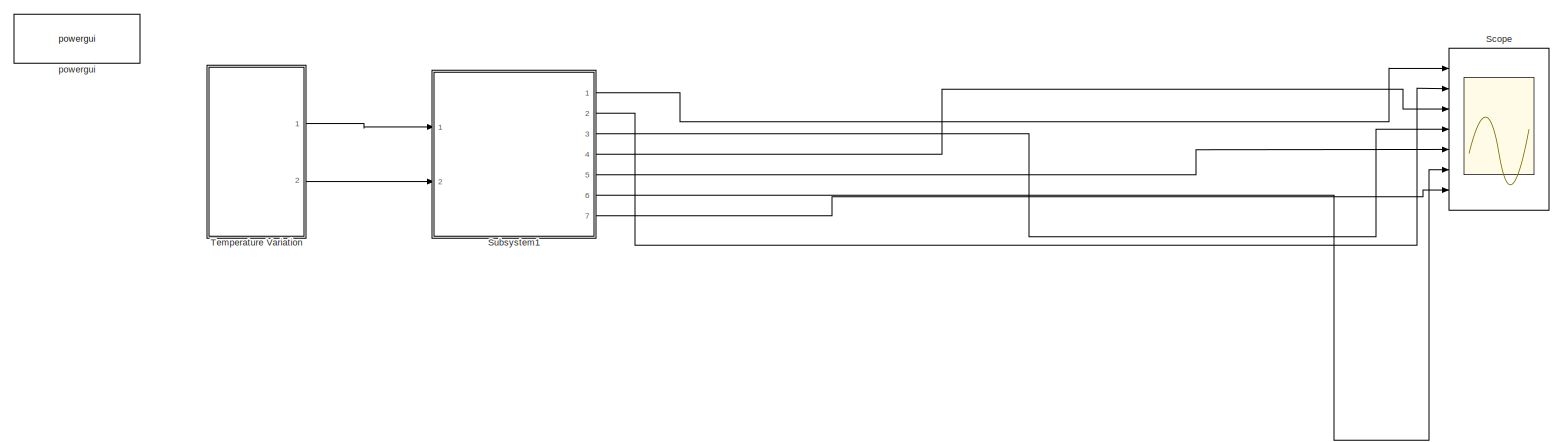
[diagram: root canvas - part 1/1, most of the canvas]
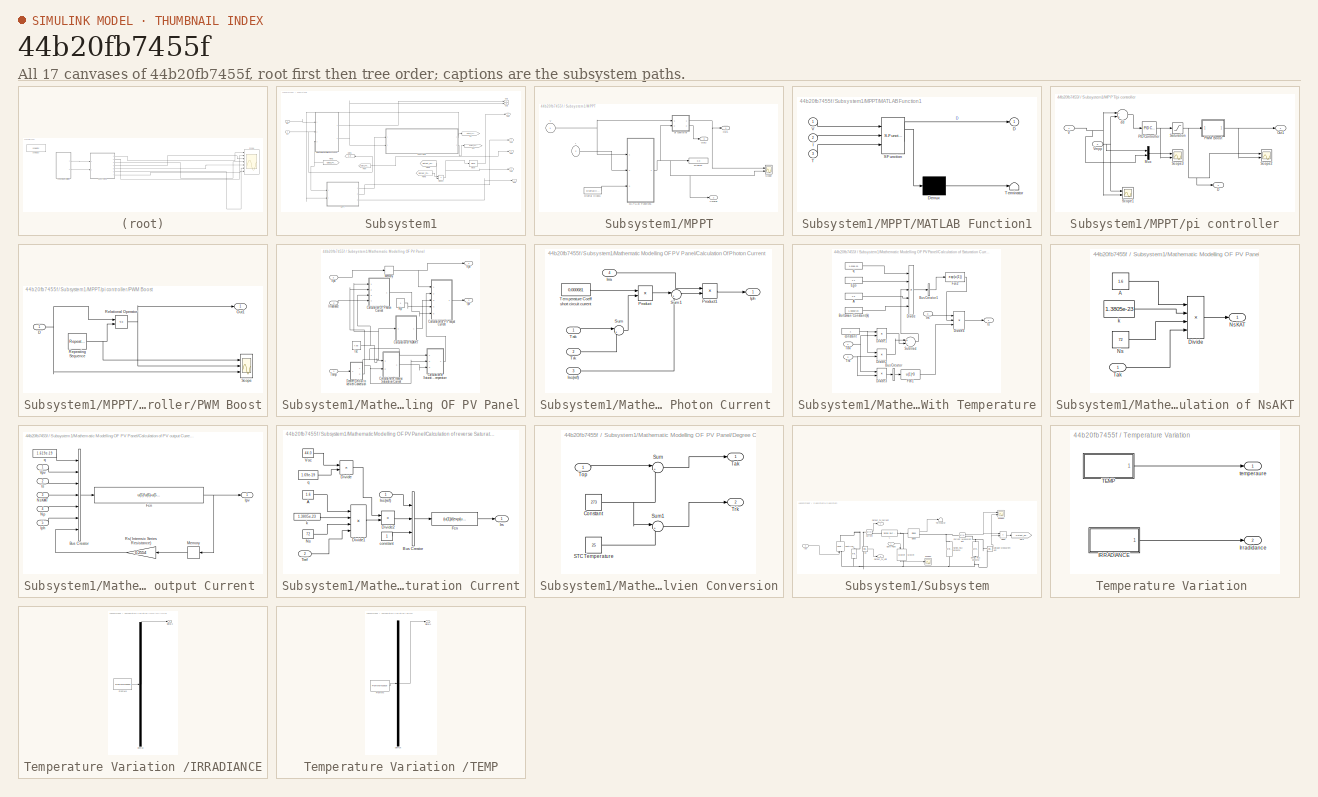
[diagram: thumbnail index - all 17 canvases of the model, root first then tree order]
MODEL slx_44b20fb7455f
KIND model
CONFIG AbsTol = auto
CONFIG FixedStep = auto
CONFIG MaxStep = auto
CONFIG MinStep = auto
CONFIG RelTol = 1e-3
CONFIG SampleTimeConstraint = Unconstrained
CONFIG Solver = ode45
CONFIG SolverMode = Auto
CONFIG SolverName = ode45
CONFIG StartTime = 0.0
CONFIG StopTime = 3
BLOCK [Scope] Scope 
  NumInputPorts = 7
  Ports = [7]
  ScopeSpecificationString = Simulink.scopes.TimeScopeBlockCfg('CurrentConfiguration', extmgr.ConfigurationSet(extmgr.Configuration('Core','General UI',true,'FigureColor',[0.941176470588235 0.941176470588235 0.941176470588235],'DisplayFullSourceName',true),extmgr.Configuration('Core','Source UI',true),extmgr.Configuration('Sources','WiredSimulink',true,'DataLoggingVariableName','ScopeData1','DataLoggingSaveFormat','StructureW...<+9059ch>
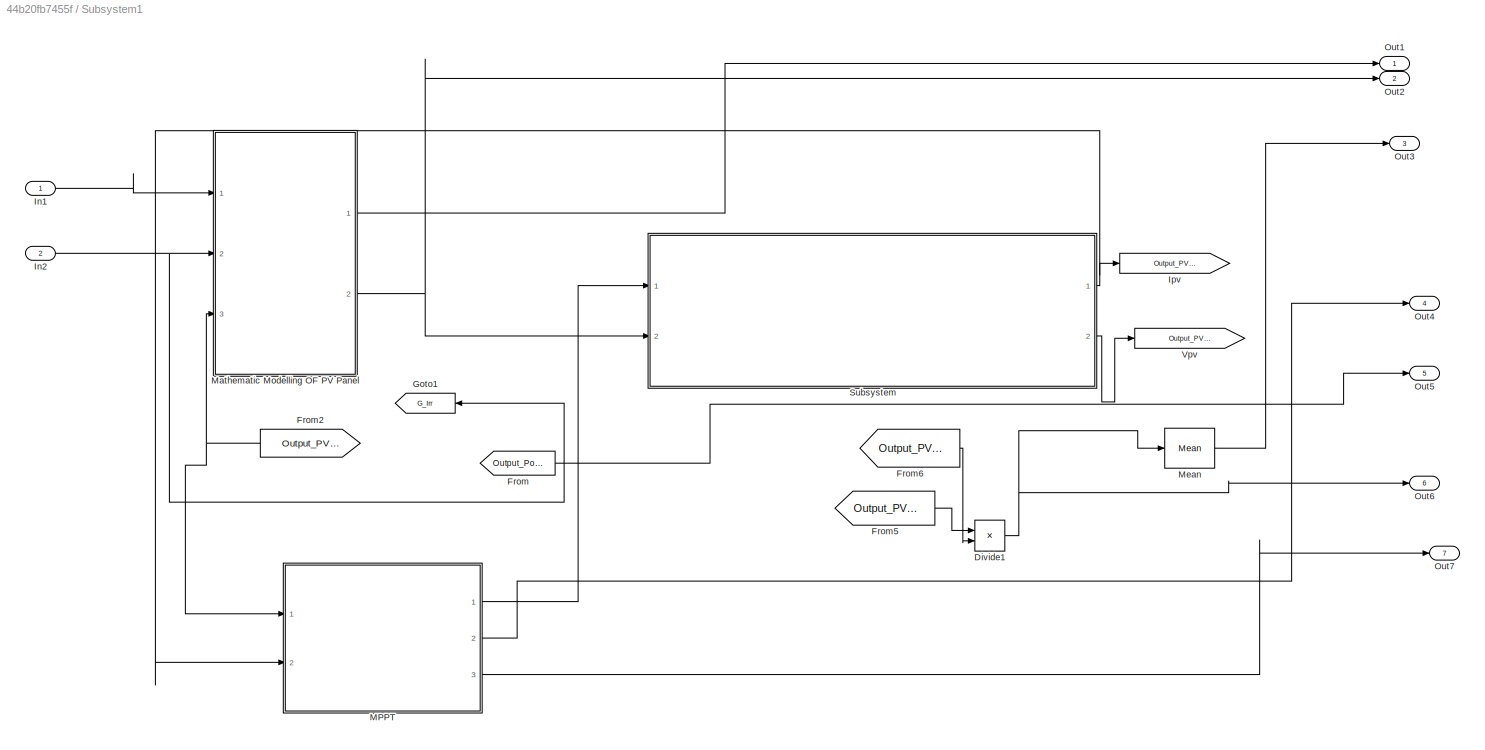
BLOCK [SubSystem] Subsystem1
  Ports = [2, 7]
  RequestExecContextInheritance = off
  Variant = off
BLOCK [Product] Subsystem1/Divide1
  InputSameDT = off
  Inputs = **
  OutDataTypeStr = Inherit: Inherit via internal rule
  Ports = [2, 1]
  RndMeth = Floor
  SaturateOnIntegerOverflow = off
BLOCK [From] Subsystem1/From
  GotoTag = Output_Power
  TagVisibility = global
BLOCK [From] Subsystem1/From2
  GotoTag = Output_PV_volt
  TagVisibility = global
BLOCK [From] Subsystem1/From5
  GotoTag = Output_PV_volt
  TagVisibility = global
BLOCK [From] Subsystem1/From6
  GotoTag = Output_PV_current
  TagVisibility = global
BLOCK [Goto] Subsystem1/Goto1
  GotoTag = G_Irr
  TagVisibility = global
BLOCK [Inport] Subsystem1/In1
  IconDisplay = Port number
BLOCK [Inport] Subsystem1/In2
  IconDisplay = Port number
  Port = 2
BLOCK [Goto] Subsystem1/Ipv
  GotoTag = Output_PV_current
  TagVisibility = global
BLOCK [SubSystem] Subsystem1/MPPT
  Ports = [2, 3]
  RequestExecContextInheritance = off
  Variant = off
BLOCK [DigitalClock] Subsystem1/MPPT/Digital Clock1
  SampleTime = 0.002
BLOCK [Display] Subsystem1/MPPT/Display
  Decimation = 1
  Ports = [1]
BLOCK [Inport] Subsystem1/MPPT/I
  IconDisplay = Port number
  Port = 2
BLOCK [SubSystem] Subsystem1/MPPT/MATLAB Function1
  ErrorFcn = Stateflow.Translate.translate
  PermitHierarchicalResolution = ExplicitOnly
  Ports = [3, 1]
  RequestExecContextInheritance = off
  SFBlockType = MATLAB Function
  TreatAsAtomicUnit = on
  Variant = off
BLOCK [Demux] Subsystem1/MPPT/MATLAB Function1/ Demux 
  Outputs = 1
  Ports = [1, 1]
BLOCK [S-Function] Subsystem1/MPPT/MATLAB Function1/ SFunction 
  EnableBusSupport = on
  FunctionName = sf_sfun
  PortCounts = [3 2]
  Ports = [3, 2]
  SFunctionDeploymentMode = off
  Tag = Stateflow S-Function Simulation_07 8
BLOCK [Terminator] Subsystem1/MPPT/MATLAB Function1/ Terminator 
BLOCK [Outport] Subsystem1/MPPT/MATLAB Function1/D
  IconDisplay = Port number
BLOCK [Inport] Subsystem1/MPPT/MATLAB Function1/I
  IconDisplay = Port number
  Port = 2
BLOCK [Inport] Subsystem1/MPPT/MATLAB Function1/T
  IconDisplay = Port number
  Port = 3
BLOCK [Inport] Subsystem1/MPPT/MATLAB Function1/V
  IconDisplay = Port number
BLOCK [Outport] Subsystem1/MPPT/Out1
  IconDisplay = Port number
BLOCK [Outport] Subsystem1/MPPT/Out2
  IconDisplay = Port number
  Port = 3
BLOCK [Scope] Subsystem1/MPPT/Scope
  NumInputPorts = 2
  Ports = [2]
  ScopeSpecificationString = C++SS(StrPVP('Location','[5, 48, 1371, 727]'),StrPVP('Open','off'),StrPVP('ZoomMode','xonly'),MxPVP('AxesTitles',24,'struct(''axes1'',''%<SignalLabel>'',''axes2'',''%<SignalLabel>'')'),MxPVP('ScopeGraphics',28,'struct(''FigureColor'',''[0.5 0.5 0.5]'',''AxesColor'',''[0 0 0]'',''AxesTickColor'',''[1 1 1]'',''LineColors'',''[1 1 0;1 0 1;0 1 1;1 0 0;0 1 0;0 0 1]'',''LineStyles'',''-|-|-|-|-|-'',''Li...<+349ch>
BLOCK [Inport] Subsystem1/MPPT/V
  IconDisplay = Port number
BLOCK [Outport] Subsystem1/MPPT/Vmpref
  IconDisplay = Port number
  Port = 2
BLOCK [SubSystem] Subsystem1/MPPT/pi controller
  Ports = [2, 2]
  RequestExecContextInheritance = off
  Variant = off
BLOCK [Outport] Subsystem1/MPPT/pi controller/D
  IconDisplay = Port number
  Port = 2
BLOCK [Mux] Subsystem1/MPPT/pi controller/Mux
  DisplayOption = bar
  Inputs = 2
  Ports = [2, 1]
BLOCK [Outport] Subsystem1/MPPT/pi controller/Out1
  IconDisplay = Port number
BLOCK [Reference] Subsystem1/MPPT/pi controller/PID Controller  REF=simulink/Continuous/PID Controller
  Ports = [1, 1]
  SourceBlock = simulink/Continuous/PID Controller
  SourceType = PID 1dof
BLOCK [SubSystem] Subsystem1/MPPT/pi controller/PWM Boost
  Ports = [1, 1]
  RequestExecContextInheritance = off
  Variant = off
BLOCK [Inport] Subsystem1/MPPT/pi controller/PWM Boost/D
  IconDisplay = Port number
BLOCK [Outport] Subsystem1/MPPT/pi controller/PWM Boost/Out1
  IconDisplay = Port number
BLOCK [RelationalOperator] Subsystem1/MPPT/pi controller/PWM Boost/Relational Operator
  InputSameDT = off
  Operator = <=
  OutDataTypeStr = boolean
  Ports = [2, 1]
  ZeroCross = off
BLOCK [Reference] Subsystem1/MPPT/pi controller/PWM Boost/Repeating Sequence  REF=simulink/Sources/Repeating
Sequence
  Ports = [0, 1]
  SourceBlock = simulink/Sources/Repeating\nSequence
  SourceType = Repeating table
BLOCK [Scope] Subsystem1/MPPT/pi controller/PWM Boost/Scope
  NumInputPorts = 3
  Ports = [3]
  ScopeSpecificationString = C++SS(StrPVP('Location','[6, 56, 1030, 729]'),StrPVP('Open','off'),StrPVP('ZoomMode','xonly'),MxPVP('AxesTitles',24,'struct(''axes1'',''%<SignalLabel>'',''axes2'',''%<SignalLabel>'',''axes3'',''%<SignalLabel>'')'),StrPVP('YMin','0~0~0.24'),StrPVP('YMax','1~1~0.37'),StrPVP('SaveName','ScopeData5'),StrPVP('DataFormat','StructureWithTime'),StrPVP('LimitDataPoints','off'),StrPVP('BlockParamSampleTime'...<+69ch>
BLOCK [Saturate] Subsystem1/MPPT/pi controller/Saturation
  InputPortMap = u0
  LowerLimit = 0.2
  Ports = [1, 1]
  UpperLimit = 0.85
BLOCK [Scope] Subsystem1/MPPT/pi controller/Scope1
  NumInputPorts = 2
  Ports = [2]
  ScopeSpecificationString = C++SS(StrPVP('Location','[5, 48, 1371, 727]'),StrPVP('Open','off'),StrPVP('ZoomMode','xonly'),MxPVP('AxesTitles',24,'struct(''axes1'',''%<SignalLabel>'',''axes2'',''%<SignalLabel>'')'),MxPVP('ScopeGraphics',28,'struct(''FigureColor'',''[0.5 0.5 0.5]'',''AxesColor'',''[0 0 0]'',''AxesTickColor'',''[1 1 1]'',''LineColors'',''[1 1 0;1 0 1;0 1 1;1 0 0;0 1 0;0 0 1]'',''LineStyles'',''-|-|-|-|-|-'',''Li...<+396ch>
BLOCK [Scope] Subsystem1/MPPT/pi controller/Scope2
  NumInputPorts = 2
  Ports = [2]
  ScopeSpecificationString = C++SS(StrPVP('Location','[5, 48, 1371, 727]'),StrPVP('Open','off'),StrPVP('ZoomMode','xonly'),MxPVP('AxesTitles',24,'struct(''axes1'',''%<SignalLabel>'',''axes2'',''%<SignalLabel>'')'),MxPVP('ScopeGraphics',28,'struct(''FigureColor'',''[0.5 0.5 0.5]'',''AxesColor'',''[0 0 0]'',''AxesTickColor'',''[1 1 1]'',''LineColors'',''[1 1 0;1 0 1;0 1 1;1 0 0;0 1 0;0 0 1]'',''LineStyles'',''-|-|-|-|-|-'',''Li...<+376ch>
BLOCK [Scope] Subsystem1/MPPT/pi controller/Scope3
  NumInputPorts = 2
  Ports = [2]
  ScopeSpecificationString = C++SS(StrPVP('Location','[5, 48, 1371, 727]'),StrPVP('Open','off'),StrPVP('ZoomMode','yonly'),MxPVP('AxesTitles',24,'struct(''axes1'',''%<SignalLabel>'',''axes2'',''%<SignalLabel>'')'),MxPVP('ScopeGraphics',28,'struct(''FigureColor'',''[0.5 0.5 0.5]'',''AxesColor'',''[0 0 0]'',''AxesTickColor'',''[1 1 1]'',''LineColors'',''[1 1 0;1 0 1;0 1 1;1 0 0;0 1 0;0 0 1]'',''LineStyles'',''-|-|-|-|-|-'',''Li...<+397ch>
BLOCK [Inport] Subsystem1/MPPT/pi controller/V 
  IconDisplay = Port number
BLOCK [Inport] Subsystem1/MPPT/pi controller/Vmpp
  IconDisplay = Port number
  Port = 2
BLOCK [Sum] Subsystem1/MPPT/pi controller/dd
  InputSameDT = off
  Inputs = -+
  OutDataTypeStr = Inherit: Inherit via internal rule
  Ports = [2, 1]
  SaturateOnIntegerOverflow = off
BLOCK [SubSystem] Subsystem1/Mathematic Modelling OF PV Panel
  Ports = [3, 2]
  RequestExecContextInheritance = off
  Variant = off
BLOCK [SubSystem] Subsystem1/Mathematic Modelling OF PV Panel/Calculation Of Photon Current 
  Ports = [4, 1]
  RequestExecContextInheritance = off
  Variant = off
BLOCK [Outport] Subsystem1/Mathematic Modelling OF PV Panel/Calculation Of Photon Current /Iph
  IconDisplay = Port number
BLOCK [Inport] Subsystem1/Mathematic Modelling OF PV Panel/Calculation Of Photon Current /Irra
  IconDisplay = Port number
  Port = 4
BLOCK [Inport] Subsystem1/Mathematic Modelling OF PV Panel/Calculation Of Photon Current /Isc(ref)
  IconDisplay = Port number
  Port = 3
BLOCK [Product] Subsystem1/Mathematic Modelling OF PV Panel/Calculation Of Photon Current /Product
  InputSameDT = off
  OutDataTypeStr = Inherit: Inherit via internal rule
  Ports = [2, 1]
  RndMeth = Floor
  SaturateOnIntegerOverflow = off
BLOCK [Product] Subsystem1/Mathematic Modelling OF PV Panel/Calculation Of Photon Current /Product1
  InputSameDT = off
  OutDataTypeStr = Inherit: Inherit via internal rule
  Ports = [2, 1]
  RndMeth = Floor
  SaturateOnIntegerOverflow = off
BLOCK [Sum] Subsystem1/Mathematic Modelling OF PV Panel/Calculation Of Photon Current /Sum
  IconShape = round
  InputSameDT = off
  Inputs = |+-
  OutDataTypeStr = Inherit: Inherit via internal rule
  Ports = [2, 1]
  SaturateOnIntegerOverflow = off
BLOCK [Sum] Subsystem1/Mathematic Modelling OF PV Panel/Calculation Of Photon Current /Sum1
  IconShape = round
  InputSameDT = off
  Inputs = |++
  OutDataTypeStr = Inherit: Inherit via internal rule
  Ports = [2, 1]
  SaturateOnIntegerOverflow = off
BLOCK [Inport] Subsystem1/Mathematic Modelling OF PV Panel/Calculation Of Photon Current /Tak
  IconDisplay = Port number
BLOCK [Constant] Subsystem1/Mathematic Modelling OF PV Panel/Calculation Of Photon Current /Temperature Coeff short circuit current 
  Value = 0.000681
BLOCK [Inport] Subsystem1/Mathematic Modelling OF PV Panel/Calculation Of Photon Current /Trk
  IconDisplay = Port number
  Port = 2
BLOCK [SubSystem] Subsystem1/Mathematic Modelling OF PV Panel/Calculation of NsAKT
  Ports = [1, 1]
  RequestExecContextInheritance = off
  Variant = off
BLOCK [Constant] Subsystem1/Mathematic Modelling OF PV Panel/Calculation of NsAKT/A
  Value = 1.6
BLOCK [Product] Subsystem1/Mathematic Modelling OF PV Panel/Calculation of NsAKT/Divide
  InputSameDT = off
  Inputs = ****
  OutDataTypeStr = Inherit: Inherit via internal rule
  Ports = [4, 1]
  RndMeth = Floor
  SaturateOnIntegerOverflow = off
BLOCK [Constant] Subsystem1/Mathematic Modelling OF PV Panel/Calculation of NsAKT/Ns
  Value = 72
BLOCK [Outport] Subsystem1/Mathematic Modelling OF PV Panel/Calculation of NsAKT/NsKAT
  IconDisplay = Port number
BLOCK [Inport] Subsystem1/Mathematic Modelling OF PV Panel/Calculation of NsAKT/Tak 
  IconDisplay = Port number
BLOCK [Constant] Subsystem1/Mathematic Modelling OF PV Panel/Calculation of NsAKT/k
  Value = 1.3805e-23
BLOCK [SubSystem] Subsystem1/Mathematic Modelling OF PV Panel/Calculation of PV output Current 
  Ports = [5, 1]
  RequestExecContextInheritance = off
  Variant = off
BLOCK [BusCreator] Subsystem1/Mathematic Modelling OF PV Panel/Calculation of PV output Current /Bus Creator
  DisplayOption = bar
  InheritFromInputs = on
  Inputs = 7
  Ports = [7, 1]
BLOCK [Fcn] Subsystem1/Mathematic Modelling OF PV Panel/Calculation of PV output Current /Fcn
  Expr = u(5)*u(6)-u(5)*u(3)*(exp((u(1)*(u(2)+u(7)))/(u(4))) - 1)
BLOCK [Inport] Subsystem1/Mathematic Modelling OF PV Panel/Calculation of PV output Current /Iph
  IconDisplay = Port number
  Port = 5
BLOCK [Outport] Subsystem1/Mathematic Modelling OF PV Panel/Calculation of PV output Current /Ipv 
  IconDisplay = Port number
BLOCK [Inport] Subsystem1/Mathematic Modelling OF PV Panel/Calculation of PV output Current /Is
  IconDisplay = Port number
  Port = 2
BLOCK [Memory] Subsystem1/Mathematic Modelling OF PV Panel/Calculation of PV output Current /Memory
BLOCK [Inport] Subsystem1/Mathematic Modelling OF PV Panel/Calculation of PV output Current /Np
  IconDisplay = Port number
  Port = 4
BLOCK [Inport] Subsystem1/Mathematic Modelling OF PV Panel/Calculation of PV output Current /NsKAT
  IconDisplay = Port number
  Port = 3
BLOCK [Gain] Subsystem1/Mathematic Modelling OF PV Panel/Calculation of PV output Current /Rs( Internsic Series Resistance)
  Gain = 0.2554
  OutDataTypeStr = Inherit: Inherit via internal rule
  ParamDataTypeStr = Inherit: Inherit via internal rule
  SaturateOnIntegerOverflow = off
BLOCK [Inport] Subsystem1/Mathematic Modelling OF PV Panel/Calculation of PV output Current /Vpv
  IconDisplay = Port number
BLOCK [Constant] Subsystem1/Mathematic Modelling OF PV Panel/Calculation of PV output Current /q
  Value = 1.619e-19
BLOCK [SubSystem] Subsystem1/Mathematic Modelling OF PV Panel/Calculation of Saturation Current Varies With Temperature
  Ports = [3, 1]
  RequestExecContextInheritance = off
  Variant = off
BLOCK [Constant] Subsystem1/Mathematic Modelling OF PV Panel/Calculation of Saturation Current Varies With Temperature/A 
  Value = 1.6
BLOCK [Constant] Subsystem1/Mathematic Modelling OF PV Panel/Calculation of Saturation Current Varies With Temperature/Boltzman Constant(k)
  Value = 1.3805e-23
BLOCK [BusCreator] Subsystem1/Mathematic Modelling OF PV Panel/Calculation of Saturation Current Varies With Temperature/Bus Creator
  DisplayOption = bar
  InheritFromInputs = on
  Inputs = 1
  Ports = [1, 1]
BLOCK [BusCreator] Subsystem1/Mathematic Modelling OF PV Panel/Calculation of Saturation Current Varies With Temperature/Bus Creator1
  DisplayOption = bar
  InheritFromInputs = on
  Inputs = 1
  Ports = [1, 1]
BLOCK [Product] Subsystem1/Mathematic Modelling OF PV Panel/Calculation of Saturation Current Varies With Temperature/Divide
  InputSameDT = off
  Inputs = ***//
  OutDataTypeStr = Inherit: Inherit via internal rule
  Ports = [5, 1]
  RndMeth = Floor
  SaturateOnIntegerOverflow = off
BLOCK [Product] Subsystem1/Mathematic Modelling OF PV Panel/Calculation of Saturation Current Varies With Temperature/Divide1
  InputSameDT = off
  Inputs = */
  OutDataTypeStr = Inherit: Inherit via internal rule
  Ports = [2, 1]
  RndMeth = Floor
  SaturateOnIntegerOverflow = off
BLOCK [Product] Subsystem1/Mathematic Modelling OF PV Panel/Calculation of Saturation Current Varies With Temperature/Divide2
  InputSameDT = off
  Inputs = */
  OutDataTypeStr = Inherit: Inherit via internal rule
  Ports = [2, 1]
  RndMeth = Floor
  SaturateOnIntegerOverflow = off
BLOCK [Product] Subsystem1/Mathematic Modelling OF PV Panel/Calculation of Saturation Current Varies With Temperature/Divide3
  InputSameDT = off
  Inputs = */
  OutDataTypeStr = Inherit: Inherit via internal rule
  Ports = [2, 1]
  RndMeth = Floor
  SaturateOnIntegerOverflow = off
BLOCK [Product] Subsystem1/Mathematic Modelling OF PV Panel/Calculation of Saturation Current Varies With Temperature/Divide4
  InputSameDT = off
  Inputs = ***
  OutDataTypeStr = Inherit: Inherit via internal rule
  Ports = [3, 1]
  RndMeth = Floor
  SaturateOnIntegerOverflow = off
BLOCK [Constant] Subsystem1/Mathematic Modelling OF PV Panel/Calculation of Saturation Current Varies With Temperature/Ego
  Value = 1.1
BLOCK [Fcn] Subsystem1/Mathematic Modelling OF PV Panel/Calculation of Saturation Current Varies With Temperature/Fcn1
  Expr = u(1)^3
BLOCK [Fcn] Subsystem1/Mathematic Modelling OF PV Panel/Calculation of Saturation Current Varies With Temperature/Fcn2
  Expr = exp(u(1))
BLOCK [Inport] Subsystem1/Mathematic Modelling OF PV Panel/Calculation of Saturation Current Varies With Temperature/Irs 
  IconDisplay = Port number
  Port = 3
BLOCK [Outport] Subsystem1/Mathematic Modelling OF PV Panel/Calculation of Saturation Current Varies With Temperature/Is
  IconDisplay = Port number
BLOCK [Sum] Subsystem1/Mathematic Modelling OF PV Panel/Calculation of Saturation Current Varies With Temperature/Subtract
  InputSameDT = off
  Inputs = +-
  OutDataTypeStr = Inherit: Inherit via internal rule
  Ports = [2, 1]
  SaturateOnIntegerOverflow = off
BLOCK [Inport] Subsystem1/Mathematic Modelling OF PV Panel/Calculation of Saturation Current Varies With Temperature/Tak
  IconDisplay = Port number
BLOCK [Inport] Subsystem1/Mathematic Modelling OF PV Panel/Calculation of Saturation Current Varies With Temperature/Trk 
  IconDisplay = Port number
  Port = 2
BLOCK [Constant] Subsystem1/Mathematic Modelling OF PV Panel/Calculation of Saturation Current Varies With Temperature/constant 
BLOCK [Constant] Subsystem1/Mathematic Modelling OF PV Panel/Calculation of Saturation Current Varies With Temperature/q 
  Value = 1.619e-19
BLOCK [SubSystem] Subsystem1/Mathematic Modelling OF PV Panel/Calculation of reverse Saturation Current
  Ports = [2, 1]
  RequestExecContextInheritance = off
  Variant = off
BLOCK [Constant] Subsystem1/Mathematic Modelling OF PV Panel/Calculation of reverse Saturation Current/A
  Value = 1.6
BLOCK [BusCreator] Subsystem1/Mathematic Modelling OF PV Panel/Calculation of reverse Saturation Current/Bus Creator
  DisplayOption = bar
  InheritFromInputs = on
  Inputs = 3
  Ports = [3, 1]
BLOCK [Product] Subsystem1/Mathematic Modelling OF PV Panel/Calculation of reverse Saturation Current/Divide
  InputSameDT = off
  Inputs = **
  OutDataTypeStr = Inherit: Inherit via internal rule
  Ports = [2, 1]
  RndMeth = Floor
  SaturateOnIntegerOverflow = off
BLOCK [Product] Subsystem1/Mathematic Modelling OF PV Panel/Calculation of reverse Saturation Current/Divide1
  InputSameDT = off
  Inputs = ****
  OutDataTypeStr = Inherit: Inherit via internal rule
  Ports = [4, 1]
  RndMeth = Floor
  SaturateOnIntegerOverflow = off
BLOCK [Product] Subsystem1/Mathematic Modelling OF PV Panel/Calculation of reverse Saturation Current/Divide2
  InputSameDT = off
  Inputs = */
  OutDataTypeStr = Inherit: Inherit via internal rule
  Ports = [2, 1]
  RndMeth = Floor
  SaturateOnIntegerOverflow = off
BLOCK [Fcn] Subsystem1/Mathematic Modelling OF PV Panel/Calculation of reverse Saturation Current/Fcn
  Expr = (u(1))/(exp(u(2))-u(3))
BLOCK [Outport] Subsystem1/Mathematic Modelling OF PV Panel/Calculation of reverse Saturation Current/Irs
  IconDisplay = Port number
BLOCK [Inport] Subsystem1/Mathematic Modelling OF PV Panel/Calculation of reverse Saturation Current/Isc(ref) 
  IconDisplay = Port number
BLOCK [Constant] Subsystem1/Mathematic Modelling OF PV Panel/Calculation of reverse Saturation Current/Ns
  Value = 72
BLOCK [Inport] Subsystem1/Mathematic Modelling OF PV Panel/Calculation of reverse Saturation Current/Tref 
  IconDisplay = Port number
  Port = 2
BLOCK [Constant] Subsystem1/Mathematic Modelling OF PV Panel/Calculation of reverse Saturation Current/Voc
  Value = 44.0
BLOCK [Constant] Subsystem1/Mathematic Modelling OF PV Panel/Calculation of reverse Saturation Current/constant 
BLOCK [Constant] Subsystem1/Mathematic Modelling OF PV Panel/Calculation of reverse Saturation Current/k
  Value = 1.3805e-23
BLOCK [Constant] Subsystem1/Mathematic Modelling OF PV Panel/Calculation of reverse Saturation Current/q
  Value = 1.69e-19
BLOCK [SubSystem] Subsystem1/Mathematic Modelling OF PV Panel/Degree Celcius to kelvien Conversion
  Ports = [1, 2]
  RequestExecContextInheritance = off
  Variant = off
BLOCK [Constant] Subsystem1/Mathematic Modelling OF PV Panel/Degree Celcius to kelvien Conversion/Constant
  Value = 273
BLOCK [Constant] Subsystem1/Mathematic Modelling OF PV Panel/Degree Celcius to kelvien Conversion/STC Temperature
  Value = 25
BLOCK [Sum] Subsystem1/Mathematic Modelling OF PV Panel/Degree Celcius to kelvien Conversion/Sum
  IconShape = round
  InputSameDT = off
  Inputs = |++
  OutDataTypeStr = Inherit: Inherit via internal rule
  Ports = [2, 1]
  SaturateOnIntegerOverflow = off
BLOCK [Sum] Subsystem1/Mathematic Modelling OF PV Panel/Degree Celcius to kelvien Conversion/Sum1
  IconShape = round
  InputSameDT = off
  Inputs = |++
  OutDataTypeStr = Inherit: Inherit via internal rule
  Ports = [2, 1]
  SaturateOnIntegerOverflow = off
BLOCK [Outport] Subsystem1/Mathematic Modelling OF PV Panel/Degree Celcius to kelvien Conversion/Tak
  IconDisplay = Port number
BLOCK [Inport] Subsystem1/Mathematic Modelling OF PV Panel/Degree Celcius to kelvien Conversion/Top 
  IconDisplay = Port number
BLOCK [Outport] Subsystem1/Mathematic Modelling OF PV Panel/Degree Celcius to kelvien Conversion/Trk
  IconDisplay = Port number
  Port = 2
BLOCK [Outport] Subsystem1/Mathematic Modelling OF PV Panel/Ipv
  IconDisplay = Port number
  Port = 2
BLOCK [Inport] Subsystem1/Mathematic Modelling OF PV Panel/Irradiance
  IconDisplay = Port number
  Port = 2
BLOCK [Constant] Subsystem1/Mathematic Modelling OF PV Panel/Isc
  Value = 7.58
BLOCK [Memory] Subsystem1/Mathematic Modelling OF PV Panel/Memory
BLOCK [Constant] Subsystem1/Mathematic Modelling OF PV Panel/Np
BLOCK [Inport] Subsystem1/Mathematic Modelling OF PV Panel/Temp
  IconDisplay = Port number
BLOCK [Inport] Subsystem1/Mathematic Modelling OF PV Panel/Vpv
  IconDisplay = Port number
  Port = 3
BLOCK [Outport] Subsystem1/Mathematic Modelling OF PV Panel/Vpv 
  IconDisplay = Port number
BLOCK [Reference] Subsystem1/Mean  REF=powerlib_meascontrol/Measurements/Mean
  Ports = [1, 1]
  SourceBlock = powerlib_meascontrol/Measurements/Mean
  SourceType = Mean
BLOCK [Outport] Subsystem1/Out1
  IconDisplay = Port number
BLOCK [Outport] Subsystem1/Out2
  IconDisplay = Port number
  Port = 2
BLOCK [Outport] Subsystem1/Out3
  IconDisplay = Port number
  Port = 3
BLOCK [Outport] Subsystem1/Out4
  IconDisplay = Port number
  Port = 4
BLOCK [Outport] Subsystem1/Out5
  IconDisplay = Port number
  Port = 5
BLOCK [Outport] Subsystem1/Out6
  IconDisplay = Port number
  Port = 6
BLOCK [Outport] Subsystem1/Out7
  IconDisplay = Port number
  Port = 7
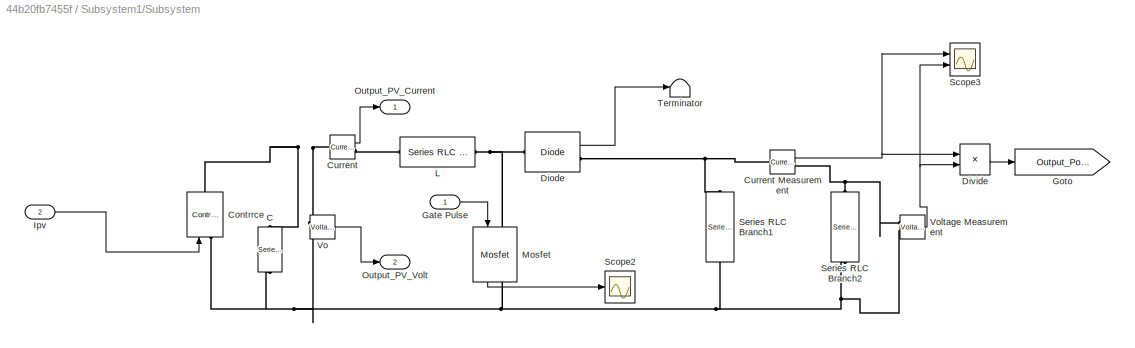
BLOCK [SubSystem] Subsystem1/Subsystem
  Ports = [2, 2]
  RequestExecContextInheritance = off
  Variant = off
BLOCK [Reference] Subsystem1/Subsystem/C  REF=powerlib/Elements/Series RLC Branch
  Ports = [0, 0, 0, 0, 0, 1, 1]
  SourceBlock = powerlib/Elements/Series RLC Branch
  SourceType = Series RLC Branch
BLOCK [Reference] Subsystem1/Subsystem/Contrrce  REF=powerlib/Electrical
Sources/Controlled Current Source
  Ports = [1, 0, 0, 0, 0, 1, 1]
  SourceBlock = powerlib/Electrical\nSources/Controlled Current Source
  SourceType = Controlled Current Source
BLOCK [Reference] Subsystem1/Subsystem/Current   REF=powerlib/Measurements/Current Measurement
  Ports = [0, 1, 0, 0, 0, 1, 1]
  SourceBlock = powerlib/Measurements/Current Measurement
  SourceType = Current Measurement
  UserDataPersistent = on
BLOCK [Reference] Subsystem1/Subsystem/Current Measurement  REF=powerlib/Measurements/Current Measurement
  Ports = [0, 1, 0, 0, 0, 1, 1]
  SourceBlock = powerlib/Measurements/Current Measurement
  SourceType = Current Measurement
  UserDataPersistent = on
BLOCK [Reference] Subsystem1/Subsystem/Diode  REF=powerlib/Power
Electronics/Diode
  Ports = [0, 1, 0, 0, 0, 1, 1]
  SourceBlock = powerlib/Power\nElectronics/Diode
  SourceType = Diode
BLOCK [Product] Subsystem1/Subsystem/Divide
  InputSameDT = off
  Inputs = **
  OutDataTypeStr = Inherit: Inherit via internal rule
  Ports = [2, 1]
  RndMeth = Floor
  SaturateOnIntegerOverflow = off
BLOCK [Inport] Subsystem1/Subsystem/Gate Pulse
  IconDisplay = Port number
BLOCK [Goto] Subsystem1/Subsystem/Goto
  GotoTag = Output_Power
  TagVisibility = global
BLOCK [Inport] Subsystem1/Subsystem/Ipv
  IconDisplay = Port number
  Port = 2
BLOCK [Reference] Subsystem1/Subsystem/L  REF=powerlib/Elements/Series RLC Branch
  Ports = [0, 0, 0, 0, 0, 1, 1]
  SourceBlock = powerlib/Elements/Series RLC Branch
  SourceType = Series RLC Branch
BLOCK [Reference] Subsystem1/Subsystem/Mosfet  REF=powerlib/Power
Electronics/Mosfet
  Ports = [1, 1, 0, 0, 0, 1, 1]
  SourceBlock = powerlib/Power\nElectronics/Mosfet
  SourceType = Mosfet
BLOCK [Outport] Subsystem1/Subsystem/Output_PV_Current
  IconDisplay = Port number
BLOCK [Outport] Subsystem1/Subsystem/Output_PV_Volt
  IconDisplay = Port number
  Port = 2
BLOCK [Scope] Subsystem1/Subsystem/Scope2
  Ports = [1]
  ScopeSpecificationString = C++SS(StrPVP('Location','[1, 49, 1367, 727]'),StrPVP('Open','off'),MxPVP('AxesTitles',24,'struct(''axes1'',''%<SignalLabel>'')'),MxPVP('ScopeGraphics',28,'struct(''FigureColor'',''[0.5 0.5 0.5]'',''AxesColor'',''[0 0 0]'',''AxesTickColor'',''[1 1 1]'',''LineColors'',''[1 1 0;1 0 1;0 1 1;1 0 0;0 1 0;0 0 1]'',''LineStyles'',''-|-|-|-|-|-'',''LineWidths'',''[0.5 0.5 0.5 0.5 0.5 0.5]'',''MarkerStyles'...<+287ch>
BLOCK [Scope] Subsystem1/Subsystem/Scope3
  NumInputPorts = 2
  Ports = [2]
  ScopeSpecificationString = C++SS(StrPVP('Location','[109, 180, 1475, 858]'),StrPVP('Open','off'),MxPVP('AxesTitles',24,'struct(''axes1'',''%<SignalLabel>'',''axes2'',''%<SignalLabel>'')'),MxPVP('ScopeGraphics',28,'struct(''FigureColor'',''[0.5 0.5 0.5]'',''AxesColor'',''[0 0 0]'',''AxesTickColor'',''[1 1 1]'',''LineColors'',''[1 1 0;1 0 1;0 1 1;1 0 0;0 1 0;0 0 1]'',''LineStyles'',''-|-|-|-|-|-'',''LineWidths'',''[0.5 0.5 0....<+325ch>
BLOCK [Reference] Subsystem1/Subsystem/Series RLC Branch1  REF=powerlib/Elements/Series RLC Branch
  Ports = [0, 0, 0, 0, 0, 1, 1]
  SourceBlock = powerlib/Elements/Series RLC Branch
  SourceType = Series RLC Branch
BLOCK [Reference] Subsystem1/Subsystem/Series RLC Branch2  REF=powerlib/Elements/Series RLC Branch
  Ports = [0, 0, 0, 0, 0, 1, 1]
  SourceBlock = powerlib/Elements/Series RLC Branch
  SourceType = Series RLC Branch
BLOCK [Terminator] Subsystem1/Subsystem/Terminator
BLOCK [Reference] Subsystem1/Subsystem/Vo  REF=powerlib/Measurements/Voltage Measurement
  Ports = [0, 1, 0, 0, 0, 2]
  SourceBlock = powerlib/Measurements/Voltage Measurement
  SourceType = Voltage Measurement
  UserDataPersistent = on
BLOCK [Reference] Subsystem1/Subsystem/Voltage Measurement  REF=powerlib/Measurements/Voltage Measurement
  Ports = [0, 1, 0, 0, 0, 2]
  SourceBlock = powerlib/Measurements/Voltage Measurement
  SourceType = Voltage Measurement
  UserDataPersistent = on
BLOCK [Goto] Subsystem1/Vpv
  GotoTag = Output_PV_volt
  TagVisibility = global
BLOCK [SubSystem] Temperature Variation 
  Ports = [0, 2]
  RequestExecContextInheritance = off
  TreatAsAtomicUnit = on
  Variant = off
  VariantControl = Temperature
BLOCK [SubSystem] Temperature Variation /IRRADIANCE
  ClipboardFcn = sigbuilder_block('clipboard');
  CloseFcn = sigbuilder_block('close');
  ContinueFcn = sigbuilder_block('continue');
  CopyFcn = sigbuilder_block('copy');
  DeleteFcn = sigbuilder_block('delete');
  LoadFcn = sigbuilder_block('load');
  MaskHideContents = on
  ModelCloseFcn = sigbuilder_block('modelClose');
  NameChangeFcn = sigbuilder_block('namechange');
  OpenFcn = sigbuilder_block('open',[6 28.2 1012.8 484.8 ]);
  PauseFcn = sigbuilder_block('pause');
  Ports = [0, 1]
  PreSaveFcn = sigbuilder_block('preSave');
  RequestExecContextInheritance = off
  StartFcn = sigbuilder_block('start');
  StopFcn = sigbuilder_block('stop');
  Tag = STV Subsys
  Variant = off
BLOCK [Demux] Temperature Variation /IRRADIANCE/Demux
  Outputs = 1
  Ports = [1, 1]
  Tag = STV Demux
BLOCK [FromWorkspace] Temperature Variation /IRRADIANCE/FromWs
  SampleTime = 0
  Tag = STV FromWs
  VariableName = tuvar
  ZeroCross = on
BLOCK [Outport] Temperature Variation /IRRADIANCE/Signal 2
  IconDisplay = Port number
  Tag = STV Outport
BLOCK [Outport] Temperature Variation /Irradidance 
  IconDisplay = Port number
  Port = 2
BLOCK [SubSystem] Temperature Variation /TEMP
  ClipboardFcn = sigbuilder_block('clipboard');
  CloseFcn = sigbuilder_block('close');
  ContinueFcn = sigbuilder_block('continue');
  CopyFcn = sigbuilder_block('copy');
  DeleteFcn = sigbuilder_block('delete');
  LoadFcn = sigbuilder_block('load');
  MaskHideContents = on
  ModelCloseFcn = sigbuilder_block('modelClose');
  NameChangeFcn = sigbuilder_block('namechange');
  OpenFcn = sigbuilder_block('open',[6 28.2 1012.8 484.8 ]);
  PauseFcn = sigbuilder_block('pause');
  Ports = [0, 1]
  PreSaveFcn = sigbuilder_block('preSave');
  RequestExecContextInheritance = off
  StartFcn = sigbuilder_block('start');
  StopFcn = sigbuilder_block('stop');
  Tag = STV Subsys
  Variant = off
BLOCK [Demux] Temperature Variation /TEMP/Demux
  Outputs = 1
  Ports = [1, 1]
  Tag = STV Demux
BLOCK [FromWorkspace] Temperature Variation /TEMP/FromWs
  SampleTime = 0
  Tag = STV FromWs
  VariableName = tuvar
  ZeroCross = on
BLOCK [Outport] Temperature Variation /TEMP/Signal 1
  IconDisplay = Port number
  Tag = STV Outport
BLOCK [Outport] Temperature Variation /temperaure
  IconDisplay = Port number
BLOCK [Reference] powergui  REF=powerlib/powergui
  Ports = []
  Priority = 1
  SourceBlock = powerlib/powergui
  SourceType = PSB option menu block
  UserDataPersistent = on
NET Subsystem1/Divide1:1 -> Subsystem1/Mean:1, Subsystem1/Out6:1
NET Subsystem1/From2:1 -> Subsystem1/MPPT:1, Subsystem1/Mathematic Modelling OF PV Panel:3
LINE Subsystem1/From5:1 -> Subsystem1/Divide1:1
LINE Subsystem1/From6:1 -> Subsystem1/Divide1:2
LINE Subsystem1/From:1 -> Subsystem1/Out5:1
LINE Subsystem1/In1:1 -> Subsystem1/Mathematic Modelling OF PV Panel:1
NET Subsystem1/In2:1 -> Subsystem1/Goto1:1, Subsystem1/Mathematic Modelling OF PV Panel:2
LINE Subsystem1/MPPT/Digital Clock1:1 -> Subsystem1/MPPT/MATLAB Function1:3
LINE Subsystem1/MPPT/I:1 -> Subsystem1/MPPT/MATLAB Function1:2
NET Subsystem1/MPPT/MATLAB Function1:1 -> Subsystem1/MPPT/Display:1, Subsystem1/MPPT/Scope:2, Subsystem1/MPPT/Vmpref:1, Subsystem1/MPPT/pi controller:2
NET Subsystem1/MPPT/V:1 -> Subsystem1/MPPT/MATLAB Function1:1, Subsystem1/MPPT/pi controller:1
LINE Subsystem1/MPPT/pi controller/Mux:1 -> Subsystem1/MPPT/pi controller/Scope3:1
NET Subsystem1/MPPT/pi controller/PID Controller:1 -> Subsystem1/MPPT/pi controller/Saturation:1, Subsystem1/MPPT/pi controller/Scope3:2
NET Subsystem1/MPPT/pi controller/PWM Boost/D:1 -> Subsystem1/MPPT/pi controller/PWM Boost/Relational Operator:1, Subsystem1/MPPT/pi controller/PWM Boost/Scope:3
NET Subsystem1/MPPT/pi controller/PWM Boost/Relational Operator:1 -> Subsystem1/MPPT/pi controller/PWM Boost/Out1:1, Subsystem1/MPPT/pi controller/PWM Boost/Scope:2
NET Subsystem1/MPPT/pi controller/PWM Boost/Repeating Sequence:1 -> Subsystem1/MPPT/pi controller/PWM Boost/Relational Operator:2, Subsystem1/MPPT/pi controller/PWM Boost/Scope:1
NET Subsystem1/MPPT/pi controller/PWM Boost:1 -> Subsystem1/MPPT/pi controller/Out1:1, Subsystem1/MPPT/pi controller/Scope2:2
NET Subsystem1/MPPT/pi controller/Saturation:1 -> Subsystem1/MPPT/pi controller/D:1, Subsystem1/MPPT/pi controller/PWM Boost:1, Subsystem1/MPPT/pi controller/Scope2:1
NET Subsystem1/MPPT/pi controller/V :1 -> Subsystem1/MPPT/pi controller/Mux:2, Subsystem1/MPPT/pi controller/Scope1:2, Subsystem1/MPPT/pi controller/dd:1
NET Subsystem1/MPPT/pi controller/Vmpp:1 -> Subsystem1/MPPT/pi controller/Mux:1, Subsystem1/MPPT/pi controller/Scope1:1, Subsystem1/MPPT/pi controller/dd:2
LINE Subsystem1/MPPT/pi controller/dd:1 -> Subsystem1/MPPT/pi controller/PID Controller:1
NET Subsystem1/MPPT/pi controller:1 -> Subsystem1/MPPT/Out1:1, Subsystem1/MPPT/Scope:1
LINE Subsystem1/MPPT/pi controller:2 -> Subsystem1/MPPT/Out2:1
LINE Subsystem1/MPPT:1 -> Subsystem1/Subsystem:1
LINE Subsystem1/MPPT:2 -> Subsystem1/Out4:1
LINE Subsystem1/MPPT:3 -> Subsystem1/Out7:1
LINE Subsystem1/Mathematic Modelling OF PV Panel/Calculation Of Photon Current /Irra:1 -> Subsystem1/Mathematic Modelling OF PV Panel/Calculation Of Photon Current /Product1:1
LINE Subsystem1/Mathematic Modelling OF PV Panel/Calculation Of Photon Current /Isc(ref):1 -> Subsystem1/Mathematic Modelling OF PV Panel/Calculation Of Photon Current /Sum1:2
LINE Subsystem1/Mathematic Modelling OF PV Panel/Calculation Of Photon Current /Product1:1 -> Subsystem1/Mathematic Modelling OF PV Panel/Calculation Of Photon Current /Iph:1
LINE Subsystem1/Mathematic Modelling OF PV Panel/Calculation Of Photon Current /Product:1 -> Subsystem1/Mathematic Modelling OF PV Panel/Calculation Of Photon Current /Sum1:1
LINE Subsystem1/Mathematic Modelling OF PV Panel/Calculation Of Photon Current /Sum1:1 -> Subsystem1/Mathematic Modelling OF PV Panel/Calculation Of Photon Current /Product1:2
LINE Subsystem1/Mathematic Modelling OF PV Panel/Calculation Of Photon Current /Sum:1 -> Subsystem1/Mathematic Modelling OF PV Panel/Calculation Of Photon Current /Product:2
LINE Subsystem1/Mathematic Modelling OF PV Panel/Calculation Of Photon Current /Tak:1 -> Subsystem1/Mathematic Modelling OF PV Panel/Calculation Of Photon Current /Sum:1
LINE Subsystem1/Mathematic Modelling OF PV Panel/Calculation Of Photon Current /Temperature Coeff short circuit current :1 -> Subsystem1/Mathematic Modelling OF PV Panel/Calculation Of Photon Current /Product:1
LINE Subsystem1/Mathematic Modelling OF PV Panel/Calculation Of Photon Current /Trk:1 -> Subsystem1/Mathematic Modelling OF PV Panel/Calculation Of Photon Current /Sum:2
LINE Subsystem1/Mathematic Modelling OF PV Panel/Calculation Of Photon Current :1 -> Subsystem1/Mathematic Modelling OF PV Panel/Calculation of PV output Current :5
LINE Subsystem1/Mathematic Modelling OF PV Panel/Calculation of NsAKT/A:1 -> Subsystem1/Mathematic Modelling OF PV Panel/Calculation of NsAKT/Divide:1
LINE Subsystem1/Mathematic Modelling OF PV Panel/Calculation of NsAKT/Divide:1 -> Subsystem1/Mathematic Modelling OF PV Panel/Calculation of NsAKT/NsKAT:1
LINE Subsystem1/Mathematic Modelling OF PV Panel/Calculation of NsAKT/Ns:1 -> Subsystem1/Mathematic Modelling OF PV Panel/Calculation of NsAKT/Divide:3
LINE Subsystem1/Mathematic Modelling OF PV Panel/Calculation of NsAKT/Tak :1 -> Subsystem1/Mathematic Modelling OF PV Panel/Calculation of NsAKT/Divide:4
LINE Subsystem1/Mathematic Modelling OF PV Panel/Calculation of NsAKT/k:1 -> Subsystem1/Mathematic Modelling OF PV Panel/Calculation of NsAKT/Divide:2
LINE Subsystem1/Mathematic Modelling OF PV Panel/Calculation of NsAKT:1 -> Subsystem1/Mathematic Modelling OF PV Panel/Calculation of PV output Current :3
LINE Subsystem1/Mathematic Modelling OF PV Panel/Calculation of PV output Current /Bus Creator:1 -> Subsystem1/Mathematic Modelling OF PV Panel/Calculation of PV output Current /Fcn:1
NET Subsystem1/Mathematic Modelling OF PV Panel/Calculation of PV output Current /Fcn:1 -> Subsystem1/Mathematic Modelling OF PV Panel/Calculation of PV output Current /Ipv :1, Subsystem1/Mathematic Modelling OF PV Panel/Calculation of PV output Current /Memory:1
LINE Subsystem1/Mathematic Modelling OF PV Panel/Calculation of PV output Current /Iph:1 -> Subsystem1/Mathematic Modelling OF PV Panel/Calculation of PV output Current /Bus Creator:6
LINE Subsystem1/Mathematic Modelling OF PV Panel/Calculation of PV output Current /Is:1 -> Subsystem1/Mathematic Modelling OF PV Panel/Calculation of PV output Current /Bus Creator:3
LINE Subsystem1/Mathematic Modelling OF PV Panel/Calculation of PV output Current /Memory:1 -> Subsystem1/Mathematic Modelling OF PV Panel/Calculation of PV output Current /Rs( Internsic Series Resistance):1
LINE Subsystem1/Mathematic Modelling OF PV Panel/Calculation of PV output Current /Np:1 -> Subsystem1/Mathematic Modelling OF PV Panel/Calculation of PV output Current /Bus Creator:5
LINE Subsystem1/Mathematic Modelling OF PV Panel/Calculation of PV output Current /NsKAT:1 -> Subsystem1/Mathematic Modelling OF PV Panel/Calculation of PV output Current /Bus Creator:4
LINE Subsystem1/Mathematic Modelling OF PV Panel/Calculation of PV output Current /Rs( Internsic Series Resistance):1 -> Subsystem1/Mathematic Modelling OF PV Panel/Calculation of PV output Current /Bus Creator:7
LINE Subsystem1/Mathematic Modelling OF PV Panel/Calculation of PV output Current /Vpv:1 -> Subsystem1/Mathematic Modelling OF PV Panel/Calculation of PV output Current /Bus Creator:2
LINE Subsystem1/Mathematic Modelling OF PV Panel/Calculation of PV output Current /q:1 -> Subsystem1/Mathematic Modelling OF PV Panel/Calculation of PV output Current /Bus Creator:1
LINE Subsystem1/Mathematic Modelling OF PV Panel/Calculation of PV output Current :1 -> Subsystem1/Mathematic Modelling OF PV Panel/Ipv:1
LINE Subsystem1/Mathematic Modelling OF PV Panel/Calculation of Saturation Current Varies With Temperature/A :1 -> Subsystem1/Mathematic Modelling OF PV Panel/Calculation of Saturation Current Varies With Temperature/Divide:4
LINE Subsystem1/Mathematic Modelling OF PV Panel/Calculation of Saturation Current Varies With Temperature/Boltzman Constant(k):1 -> Subsystem1/Mathematic Modelling OF PV Panel/Calculation of Saturation Current Varies With Temperature/Divide:5
LINE Subsystem1/Mathematic Modelling OF PV Panel/Calculation of Saturation Current Varies With Temperature/Bus Creator1:1 -> Subsystem1/Mathematic Modelling OF PV Panel/Calculation of Saturation Current Varies With Temperature/Fcn2:1
LINE Subsystem1/Mathematic Modelling OF PV Panel/Calculation of Saturation Current Varies With Temperature/Bus Creator:1 -> Subsystem1/Mathematic Modelling OF PV Panel/Calculation of Saturation Current Varies With Temperature/Fcn1:1
LINE Subsystem1/Mathematic Modelling OF PV Panel/Calculation of Saturation Current Varies With Temperature/Divide1:1 -> Subsystem1/Mathematic Modelling OF PV Panel/Calculation of Saturation Current Varies With Temperature/Subtract:2
LINE Subsystem1/Mathematic Modelling OF PV Panel/Calculation of Saturation Current Varies With Temperature/Divide2:1 -> Subsystem1/Mathematic Modelling OF PV Panel/Calculation of Saturation Current Varies With Temperature/Subtract:1
LINE Subsystem1/Mathematic Modelling OF PV Panel/Calculation of Saturation Current Varies With Temperature/Divide3:1 -> Subsystem1/Mathematic Modelling OF PV Panel/Calculation of Saturation Current Varies With Temperature/Bus Creator:1
LINE Subsystem1/Mathematic Modelling OF PV Panel/Calculation of Saturation Current Varies With Temperature/Divide4:1 -> Subsystem1/Mathematic Modelling OF PV Panel/Calculation of Saturation Current Varies With Temperature/Is:1
LINE Subsystem1/Mathematic Modelling OF PV Panel/Calculation of Saturation Current Varies With Temperature/Divide:1 -> Subsystem1/Mathematic Modelling OF PV Panel/Calculation of Saturation Current Varies With Temperature/Bus Creator1:1
LINE Subsystem1/Mathematic Modelling OF PV Panel/Calculation of Saturation Current Varies With Temperature/Ego:1 -> Subsystem1/Mathematic Modelling OF PV Panel/Calculation of Saturation Current Varies With Temperature/Divide:2
LINE Subsystem1/Mathematic Modelling OF PV Panel/Calculation of Saturation Current Varies With Temperature/Fcn1:1 -> Subsystem1/Mathematic Modelling OF PV Panel/Calculation of Saturation Current Varies With Temperature/Divide4:3
LINE Subsystem1/Mathematic Modelling OF PV Panel/Calculation of Saturation Current Varies With Temperature/Fcn2:1 -> Subsystem1/Mathematic Modelling OF PV Panel/Calculation of Saturation Current Varies With Temperature/Divide4:2
LINE Subsystem1/Mathematic Modelling OF PV Panel/Calculation of Saturation Current Varies With Temperature/Irs :1 -> Subsystem1/Mathematic Modelling OF PV Panel/Calculation of Saturation Current Varies With Temperature/Divide4:1
LINE Subsystem1/Mathematic Modelling OF PV Panel/Calculation of Saturation Current Varies With Temperature/Subtract:1 -> Subsystem1/Mathematic Modelling OF PV Panel/Calculation of Saturation Current Varies With Temperature/Divide:3
NET Subsystem1/Mathematic Modelling OF PV Panel/Calculation of Saturation Current Varies With Temperature/Tak:1 -> Subsystem1/Mathematic Modelling OF PV Panel/Calculation of Saturation Current Varies With Temperature/Divide1:2, Subsystem1/Mathematic Modelling OF PV Panel/Calculation of Saturation Current Varies With Temperature/Divide3:1
NET Subsystem1/Mathematic Modelling OF PV Panel/Calculation of Saturation Current Varies With Temperature/Trk :1 -> Subsystem1/Mathematic Modelling OF PV Panel/Calculation of Saturation Current Varies With Temperature/Divide2:2, Subsystem1/Mathematic Modelling OF PV Panel/Calculation of Saturation Current Varies With Temperature/Divide3:2
NET Subsystem1/Mathematic Modelling OF PV Panel/Calculation of Saturation Current Varies With Temperature/constant :1 -> Subsystem1/Mathematic Modelling OF PV Panel/Calculation of Saturation Current Varies With Temperature/Divide1:1, Subsystem1/Mathematic Modelling OF PV Panel/Calculation of Saturation Current Varies With Temperature/Divide2:1
LINE Subsystem1/Mathematic Modelling OF PV Panel/Calculation of Saturation Current Varies With Temperature/q :1 -> Subsystem1/Mathematic Modelling OF PV Panel/Calculation of Saturation Current Varies With Temperature/Divide:1
LINE Subsystem1/Mathematic Modelling OF PV Panel/Calculation of Saturation Current Varies With Temperature:1 -> Subsystem1/Mathematic Modelling OF PV Panel/Calculation of PV output Current :2
LINE Subsystem1/Mathematic Modelling OF PV Panel/Calculation of reverse Saturation Current/A:1 -> Subsystem1/Mathematic Modelling OF PV Panel/Calculation of reverse Saturation Current/Divide1:1
LINE Subsystem1/Mathematic Modelling OF PV Panel/Calculation of reverse Saturation Current/Bus Creator:1 -> Subsystem1/Mathematic Modelling OF PV Panel/Calculation of reverse Saturation Current/Fcn:1
LINE Subsystem1/Mathematic Modelling OF PV Panel/Calculation of reverse Saturation Current/Divide1:1 -> Subsystem1/Mathematic Modelling OF PV Panel/Calculation of reverse Saturation Current/Divide2:2
LINE Subsystem1/Mathematic Modelling OF PV Panel/Calculation of reverse Saturation Current/Divide2:1 -> Subsystem1/Mathematic Modelling OF PV Panel/Calculation of reverse Saturation Current/Bus Creator:2
LINE Subsystem1/Mathematic Modelling OF PV Panel/Calculation of reverse Saturation Current/Divide:1 -> Subsystem1/Mathematic Modelling OF PV Panel/Calculation of reverse Saturation Current/Divide2:1
LINE Subsystem1/Mathematic Modelling OF PV Panel/Calculation of reverse Saturation Current/Fcn:1 -> Subsystem1/Mathematic Modelling OF PV Panel/Calculation of reverse Saturation Current/Irs:1
LINE Subsystem1/Mathematic Modelling OF PV Panel/Calculation of reverse Saturation Current/Isc(ref) :1 -> Subsystem1/Mathematic Modelling OF PV Panel/Calculation of reverse Saturation Current/Bus Creator:1
LINE Subsystem1/Mathematic Modelling OF PV Panel/Calculation of reverse Saturation Current/Ns:1 -> Subsystem1/Mathematic Modelling OF PV Panel/Calculation of reverse Saturation Current/Divide1:3
LINE Subsystem1/Mathematic Modelling OF PV Panel/Calculation of reverse Saturation Current/Tref :1 -> Subsystem1/Mathematic Modelling OF PV Panel/Calculation of reverse Saturation Current/Divide1:4
LINE Subsystem1/Mathematic Modelling OF PV Panel/Calculation of reverse Saturation Current/Voc:1 -> Subsystem1/Mathematic Modelling OF PV Panel/Calculation of reverse Saturation Current/Divide:1
LINE Subsystem1/Mathematic Modelling OF PV Panel/Calculation of reverse Saturation Current/constant :1 -> Subsystem1/Mathematic Modelling OF PV Panel/Calculation of reverse Saturation Current/Bus Creator:3
LINE Subsystem1/Mathematic Modelling OF PV Panel/Calculation of reverse Saturation Current/k:1 -> Subsystem1/Mathematic Modelling OF PV Panel/Calculation of reverse Saturation Current/Divide1:2
LINE Subsystem1/Mathematic Modelling OF PV Panel/Calculation of reverse Saturation Current/q:1 -> Subsystem1/Mathematic Modelling OF PV Panel/Calculation of reverse Saturation Current/Divide:2
LINE Subsystem1/Mathematic Modelling OF PV Panel/Calculation of reverse Saturation Current:1 -> Subsystem1/Mathematic Modelling OF PV Panel/Calculation of Saturation Current Varies With Temperature:3
NET Subsystem1/Mathematic Modelling OF PV Panel/Degree Celcius to kelvien Conversion/Constant:1 -> Subsystem1/Mathematic Modelling OF PV Panel/Degree Celcius to kelvien Conversion/Sum1:1, Subsystem1/Mathematic Modelling OF PV Panel/Degree Celcius to kelvien Conversion/Sum:2
LINE Subsystem1/Mathematic Modelling OF PV Panel/Degree Celcius to kelvien Conversion/STC Temperature:1 -> Subsystem1/Mathematic Modelling OF PV Panel/Degree Celcius to kelvien Conversion/Sum1:2
LINE Subsystem1/Mathematic Modelling OF PV Panel/Degree Celcius to kelvien Conversion/Sum1:1 -> Subsystem1/Mathematic Modelling OF PV Panel/Degree Celcius to kelvien Conversion/Trk:1
LINE Subsystem1/Mathematic Modelling OF PV Panel/Degree Celcius to kelvien Conversion/Sum:1 -> Subsystem1/Mathematic Modelling OF PV Panel/Degree Celcius to kelvien Conversion/Tak:1
LINE Subsystem1/Mathematic Modelling OF PV Panel/Degree Celcius to kelvien Conversion/Top :1 -> Subsystem1/Mathematic Modelling OF PV Panel/Degree Celcius to kelvien Conversion/Sum:1
NET Subsystem1/Mathematic Modelling OF PV Panel/Degree Celcius to kelvien Conversion:1 -> Subsystem1/Mathematic Modelling OF PV Panel/Calculation Of Photon Current :1, Subsystem1/Mathematic Modelling OF PV Panel/Calculation of NsAKT:1, Subsystem1/Mathematic Modelling OF PV Panel/Calculation of Saturation Current Varies With Temperature:1
NET Subsystem1/Mathematic Modelling OF PV Panel/Degree Celcius to kelvien Conversion:2 -> Subsystem1/Mathematic Modelling OF PV Panel/Calculation Of Photon Current :2, Subsystem1/Mathematic Modelling OF PV Panel/Calculation of Saturation Current Varies With Temperature:2, Subsystem1/Mathematic Modelling OF PV Panel/Calculation of reverse Saturation Current:2
LINE Subsystem1/Mathematic Modelling OF PV Panel/Irradiance:1 -> Subsystem1/Mathematic Modelling OF PV Panel/Calculation Of Photon Current :4
NET Subsystem1/Mathematic Modelling OF PV Panel/Isc:1 -> Subsystem1/Mathematic Modelling OF PV Panel/Calculation Of Photon Current :3, Subsystem1/Mathematic Modelling OF PV Panel/Calculation of reverse Saturation Current:1
NET Subsystem1/Mathematic Modelling OF PV Panel/Memory:1 -> Subsystem1/Mathematic Modelling OF PV Panel/Calculation of PV output Current :1, Subsystem1/Mathematic Modelling OF PV Panel/Vpv :1
LINE Subsystem1/Mathematic Modelling OF PV Panel/Np:1 -> Subsystem1/Mathematic Modelling OF PV Panel/Calculation of PV output Current :4
LINE Subsystem1/Mathematic Modelling OF PV Panel/Temp:1 -> Subsystem1/Mathematic Modelling OF PV Panel/Degree Celcius to kelvien Conversion:1
LINE Subsystem1/Mathematic Modelling OF PV Panel/Vpv:1 -> Subsystem1/Mathematic Modelling OF PV Panel/Memory:1
LINE Subsystem1/Mathematic Modelling OF PV Panel:1 -> Subsystem1/Out1:1
NET Subsystem1/Mathematic Modelling OF PV Panel:2 -> Subsystem1/Out2:1, Subsystem1/Subsystem:2
LINE Subsystem1/Mean:1 -> Subsystem1/Out3:1
LINE Subsystem1/Subsystem/Current :1 -> Subsystem1/Subsystem/Output_PV_Current:1
NET Subsystem1/Subsystem/Current Measurement:1 -> Subsystem1/Subsystem/Divide:1, Subsystem1/Subsystem/Scope3:1
LINE Subsystem1/Subsystem/Diode:1 -> Subsystem1/Subsystem/Terminator:1
LINE Subsystem1/Subsystem/Divide:1 -> Subsystem1/Subsystem/Goto:1
LINE Subsystem1/Subsystem/Gate Pulse:1 -> Subsystem1/Subsystem/Mosfet:1
LINE Subsystem1/Subsystem/Ipv:1 -> Subsystem1/Subsystem/Contrrce:1
LINE Subsystem1/Subsystem/Mosfet:1 -> Subsystem1/Subsystem/Scope2:1
LINE Subsystem1/Subsystem/Vo:1 -> Subsystem1/Subsystem/Output_PV_Volt:1
NET Subsystem1/Subsystem/Voltage Measurement:1 -> Subsystem1/Subsystem/Divide:2, Subsystem1/Subsystem/Scope3:2
NET Subsystem1/Subsystem:1 -> Subsystem1/Ipv:1, Subsystem1/MPPT:2
LINE Subsystem1/Subsystem:2 -> Subsystem1/Vpv:1
LINE Subsystem1:1 -> Scope :1
LINE Subsystem1:2 -> Scope :2
LINE Subsystem1:3 -> Scope :4
LINE Subsystem1:4 -> Scope :3
LINE Subsystem1:5 -> Scope :5
LINE Subsystem1:6 -> Scope :6
LINE Subsystem1:7 -> Scope :7
LINE Temperature Variation /IRRADIANCE:1 -> Temperature Variation /Irradidance :1
LINE Temperature Variation /TEMP:1 -> Temperature Variation /temperaure:1
LINE Temperature Variation :1 -> Subsystem1:1
LINE Temperature Variation :2 -> Subsystem1:2
PNET net1: Subsystem1/Subsystem/C:LConn1 -- Subsystem1/Subsystem/Contrrce:RConn1 -- Subsystem1/Subsystem/Current :LConn1 -- Subsystem1/Subsystem/Vo:LConn1
PNET net2: Subsystem1/Subsystem/C:RConn1 -- Subsystem1/Subsystem/Contrrce:LConn1 -- Subsystem1/Subsystem/Mosfet:RConn1 -- Subsystem1/Subsystem/Series RLC Branch1:RConn1 -- Subsystem1/Subsystem/Series RLC Branch2:RConn1 -- Subsystem1/Subsystem/Vo:LConn2 -- Subsystem1/Subsystem/Voltage Measurement:LConn2
PLINE Subsystem1/Subsystem/Current :RConn1 -- Subsystem1/Subsystem/L:LConn1
PNET net3: Subsystem1/Subsystem/Current Measurement:LConn1 -- Subsystem1/Subsystem/Diode:RConn1 -- Subsystem1/Subsystem/Series RLC Branch1:LConn1
PNET net4: Subsystem1/Subsystem/Current Measurement:RConn1 -- Subsystem1/Subsystem/Series RLC Branch2:LConn1 -- Subsystem1/Subsystem/Voltage Measurement:LConn1
PNET net5: Subsystem1/Subsystem/Diode:LConn1 -- Subsystem1/Subsystem/L:RConn1 -- Subsystem1/Subsystem/Mosfet:LConn1
note: NET lines group one-source signal fan-out (src -> all destinations, sorted); 1:1 wires keep LINE; PNET lines group multi-terminal physical nets as a canonical sorted terminal list (undirected conserving connections); 2-terminal nets keep the pairwise PLINE form
CHART Subsystem1/MPPT/MATLAB Function1 states=1 transitions=1
  STATE_LABEL 'eML_blk_kernel()'
  STATE_LABEL 'SCRIPT:\n function D = perturbandobserve(V,I,T)\npersistent m1 p1 p2 v1;\npersistent t1;\n if isempty(t1)\n     t1=0;\n     m1=0;\n     p1=0;\n     p2=0;\n     v1=0;\nend\ni=I;v=V;\nt=T;\nstep=0.1;\nif t<=0.1\n    m0=36;\n    p1=v*i;\n    t1=t\n    m1=m0;\n    v1=v;\n    D=m1;\n    return\nend\nif((t-t1)>0.1)\n    p2=v*i;\n    delp=p2-p1;\n    delv=v-v1;\n    if(delp==0)\n        D=m1;\n        p1=p2;\n        t1=t;\n        v1...<+331ch>'
